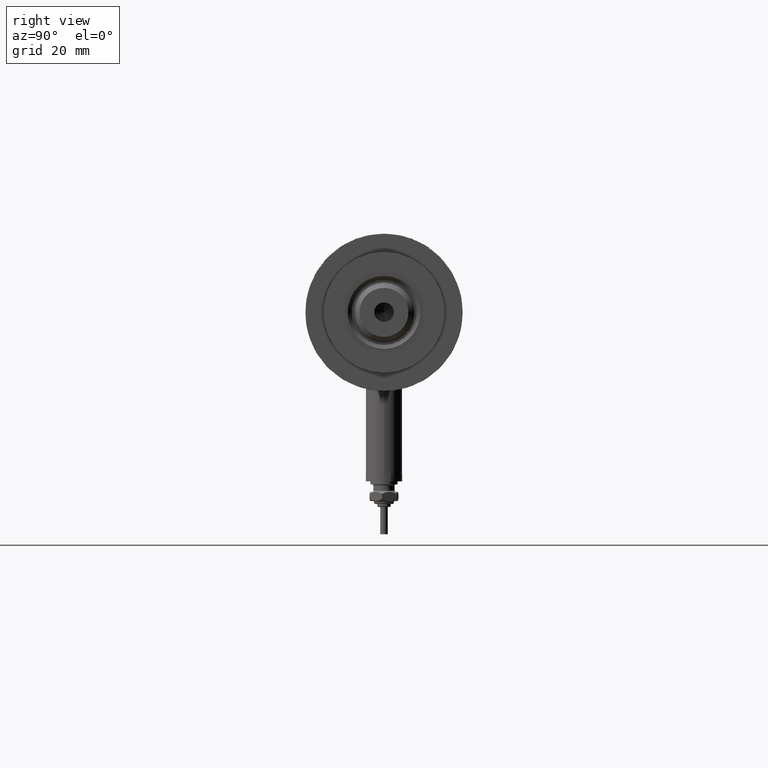
[diagram: clean part render]
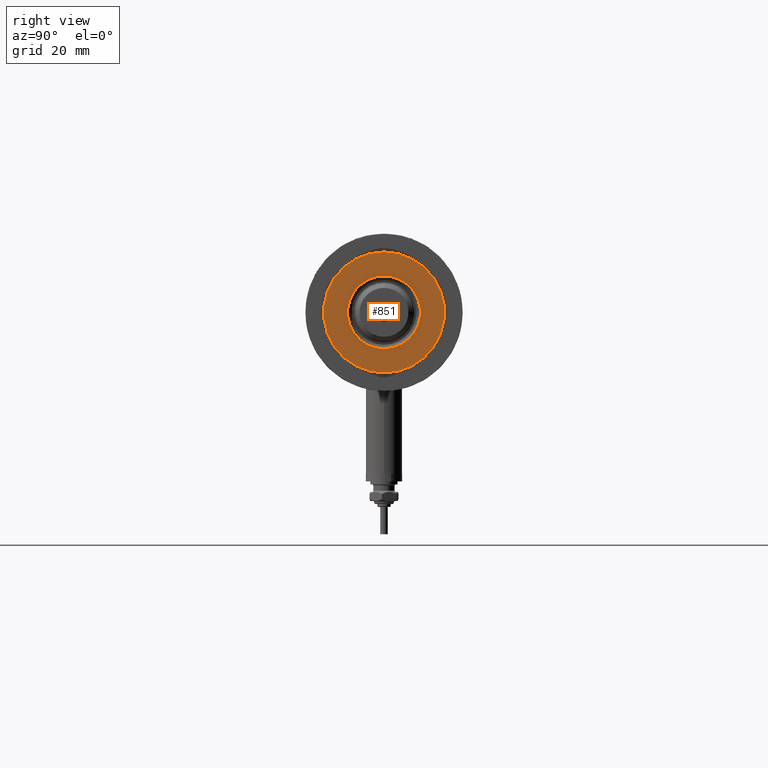
[diagram: same view with one face highlighted and labeled with its STEP entity id]
A machine part, right view. The second image highlights one B-rep face of the part: STEP entity #851.
In plain terms, the highlighted planar face has unit normal (1, 0, -0).
Its self-contained STEP definition (entity closure, byte-faithful):
#105 = CIRCLE ( 'NONE', #703, 12.05000000000000426 ) ;
#153 = CARTESIAN_POINT ( 'NONE',  ( -19.99999999999999645, 0.000000000000000000, 33.50000000000000000 ) ) ;
#154 = DIRECTION ( 'NONE',  ( -0.000000000000000000, -0.000000000000000000, -1.000000000000000000 ) ) ;
#169 = CIRCLE ( 'NONE', #3948, 19.99999999999999645 ) ;
#344 = ORIENTED_EDGE ( 'NONE', *, *, #905, .T. ) ;
#703 = AXIS2_PLACEMENT_3D ( 'NONE', #4336, #5807, #3423 ) ;
#851 = ADVANCED_FACE ( 'NONE', ( #4309, #6249 ), #4367, .T. ) ;
#905 = EDGE_CURVE ( 'NONE', #2527, #4534, #169, .T. ) ;
#1083 = EDGE_CURVE ( 'NONE', #4534, #2527, #3742, .T. ) ;
#1153 = VERTEX_POINT ( 'NONE', #6077 ) ;
#1378 = DIRECTION ( 'NONE',  ( 1.000000000000000000, 0.000000000000000000, -0.000000000000000000 ) ) ;
#1425 = VERTEX_POINT ( 'NONE', #3912 ) ;
#1628 = CIRCLE ( 'NONE', #2343, 12.05000000000000426 ) ;
#2010 = DIRECTION ( 'NONE',  ( 1.000000000000000000, 0.000000000000000000, 0.000000000000000000 ) ) ;
#2131 = CARTESIAN_POINT ( 'NONE',  ( 0.000000000000000000, 0.000000000000000000, 33.50000000000000000 ) ) ;
#2343 = AXIS2_PLACEMENT_3D ( 'NONE', #2131, #154, #3003 ) ;
#2527 = VERTEX_POINT ( 'NONE', #3716 ) ;
#2615 = DIRECTION ( 'NONE',  ( 1.000000000000000000, 0.000000000000000000, 0.000000000000000000 ) ) ;
#2801 = ORIENTED_EDGE ( 'NONE', *, *, #5565, .T. ) ;
#2980 = CARTESIAN_POINT ( 'NONE',  ( 0.000000000000000000, 0.000000000000000000, 33.50000000000000000 ) ) ;
#3003 = DIRECTION ( 'NONE',  ( 1.000000000000000000, 0.000000000000000000, 0.000000000000000000 ) ) ;
#3423 = DIRECTION ( 'NONE',  ( 1.000000000000000000, 0.000000000000000000, 0.000000000000000000 ) ) ;
#3443 = AXIS2_PLACEMENT_3D ( 'NONE', #3812, #5777, #1378 ) ;
#3679 = DIRECTION ( 'NONE',  ( 0.000000000000000000, 0.000000000000000000, 1.000000000000000000 ) ) ;
#3716 = CARTESIAN_POINT ( 'NONE',  ( 19.99999999999999645, 2.449293598294706119E-15, 33.50000000000000000 ) ) ;
#3742 = CIRCLE ( 'NONE', #4373, 19.99999999999999645 ) ;
#3812 = CARTESIAN_POINT ( 'NONE',  ( 0.000000000000000000, 0.000000000000000000, 33.50000000000000000 ) ) ;
#3912 = CARTESIAN_POINT ( 'NONE',  ( 12.05000000000000426, 0.000000000000000000, 33.50000000000000000 ) ) ;
#3948 = AXIS2_PLACEMENT_3D ( 'NONE', #2980, #4029, #2010 ) ;
#4029 = DIRECTION ( 'NONE',  ( 0.000000000000000000, 0.000000000000000000, 1.000000000000000000 ) ) ;
#4309 = FACE_BOUND ( 'NONE', #5542, .T. ) ;
#4336 = CARTESIAN_POINT ( 'NONE',  ( 0.000000000000000000, 0.000000000000000000, 33.50000000000000000 ) ) ;
#4367 = PLANE ( 'NONE',  #3443 ) ;
#4373 = AXIS2_PLACEMENT_3D ( 'NONE', #5673, #3679, #2615 ) ;
#4534 = VERTEX_POINT ( 'NONE', #153 ) ;
#4956 = ORIENTED_EDGE ( 'NONE', *, *, #5296, .T. ) ;
#5031 = EDGE_LOOP ( 'NONE', ( #6139, #344 ) ) ;
#5296 = EDGE_CURVE ( 'NONE', #1425, #1153, #105, .T. ) ;
#5542 = EDGE_LOOP ( 'NONE', ( #4956, #2801 ) ) ;
#5565 = EDGE_CURVE ( 'NONE', #1153, #1425, #1628, .T. ) ;
#5673 = CARTESIAN_POINT ( 'NONE',  ( 0.000000000000000000, 0.000000000000000000, 33.50000000000000000 ) ) ;
#5777 = DIRECTION ( 'NONE',  ( 0.000000000000000000, 0.000000000000000000, 1.000000000000000000 ) ) ;
#5807 = DIRECTION ( 'NONE',  ( -0.000000000000000000, -0.000000000000000000, -1.000000000000000000 ) ) ;
#6077 = CARTESIAN_POINT ( 'NONE',  ( -12.05000000000000426, 1.475699392972560823E-15, 33.50000000000000000 ) ) ;
#6139 = ORIENTED_EDGE ( 'NONE', *, *, #1083, .T. ) ;
#6249 = FACE_OUTER_BOUND ( 'NONE', #5031, .T. ) ;